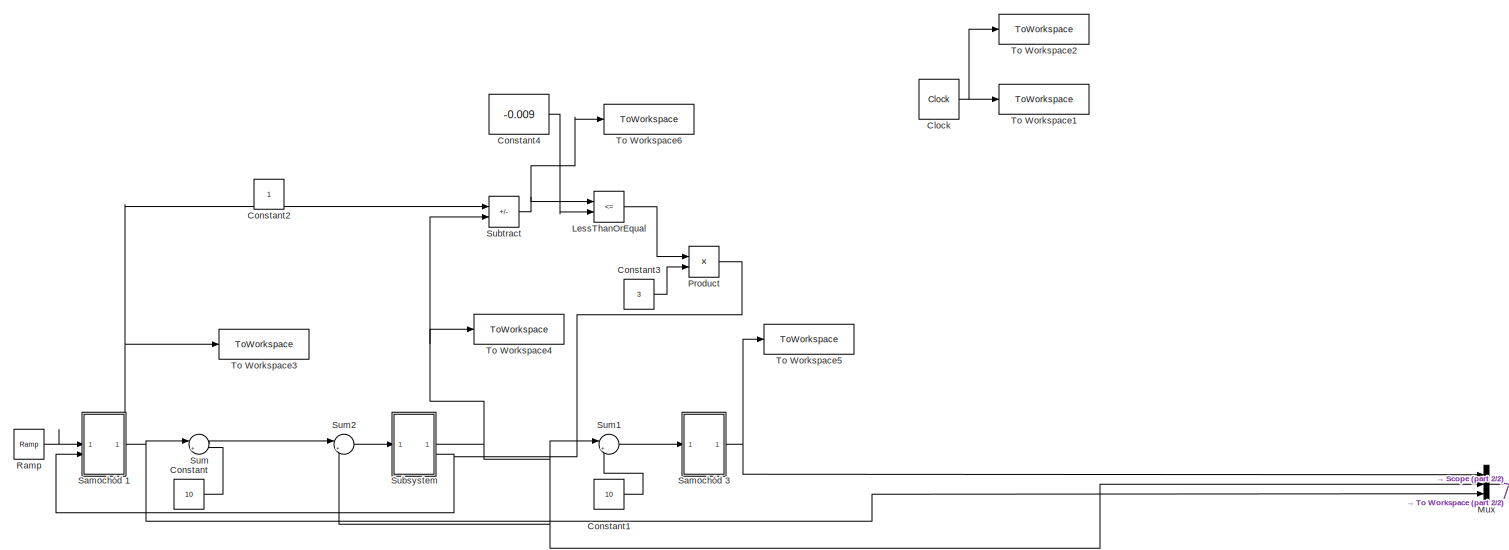
[diagram: root canvas - part 1/2, most of the canvas]
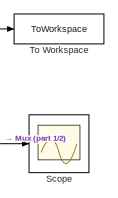
[diagram: root canvas - part 2/2, bottom right region]
MODEL slx_7ba6848b26ef
KIND model
CONFIG AbsTol = auto
CONFIG EnableMultiTasking = off
CONFIG FixedStep = auto
CONFIG MaxStep = auto
CONFIG MinStep = auto
CONFIG RelTol = 1e-12
CONFIG SampleTimeConstraint = Unconstrained
CONFIG SolverName = VariableStepAuto
CONFIG StartTime = 0
CONFIG StopTime = 200
BLOCK [Clock] Clock
BLOCK [Constant] Constant
  Value = 10
BLOCK [Constant] Constant1
  Value = 10
BLOCK [Constant] Constant2
  IOType = siggen
BLOCK [Constant] Constant3
  Value = 3
BLOCK [Constant] Constant4
  Value = -0.009
BLOCK [RelationalOperator] LessThanOrEqual
  InputSameDT = off
  Operator = <=
  OutDataTypeStr = boolean
  RndMeth = Simplest
BLOCK [Mux] Mux
  DisplayOption = bar
  Inputs = 3
BLOCK [Product] Product
BLOCK [Reference] Ramp  REF=simulink/Sources/Ramp
  SourceBlock = simulink/Sources/Ramp
  SourceType = Ramp
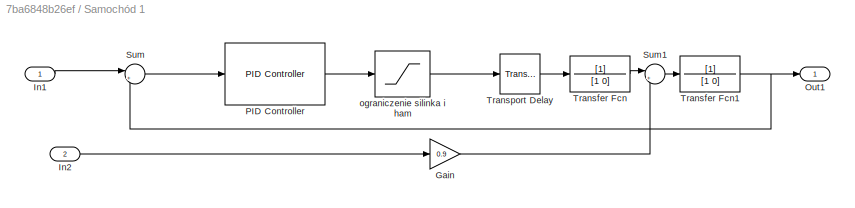
BLOCK [SubSystem] Samochód 1
BLOCK [Gain] Samochód 1/Gain
  Gain = 0.9
BLOCK [Inport] Samochód 1/In1
BLOCK [Inport] Samochód 1/In2
  Port = 2
BLOCK [Outport] Samochód 1/Out1
BLOCK [Reference] Samochód 1/PID Controller  REF=slpidlib/PID Controller
  LibrarySourceBlock = simulink/Continuous/PID Controller
  SourceBlock = slpidlib/PID Controller
  SourceType = PID 1dof
BLOCK [Sum] Samochód 1/Sum
  Inputs = |+-
BLOCK [Sum] Samochód 1/Sum1
  Inputs = |+-
BLOCK [TransferFcn] Samochód 1/Transfer Fcn
  Denominator = [1 0]
BLOCK [TransferFcn] Samochód 1/Transfer Fcn1
  Denominator = [1 0]
BLOCK [TransportDelay] Samochód 1/Transport Delay
  DelayTime = 0.08
BLOCK [Saturate] Samochód 1/ograniczenie silinka i ham
  LowerLimit = -11
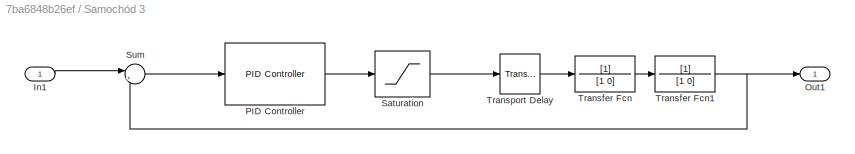
BLOCK [SubSystem] Samochód 3
BLOCK [Inport] Samochód 3/In1
BLOCK [Outport] Samochód 3/Out1
BLOCK [Reference] Samochód 3/PID Controller  REF=slpidlib/PID Controller
  LibrarySourceBlock = simulink/Continuous/PID Controller
  SourceBlock = slpidlib/PID Controller
  SourceType = PID 1dof
BLOCK [Saturate] Samochód 3/Saturation
  LowerLimit = -11
  UpperLimit = 3
BLOCK [Sum] Samochód 3/Sum
  Inputs = |+-
BLOCK [TransferFcn] Samochód 3/Transfer Fcn
  Denominator = [1 0]
BLOCK [TransferFcn] Samochód 3/Transfer Fcn1
  Denominator = [1 0]
BLOCK [TransportDelay] Samochód 3/Transport Delay
  DelayTime = 0.08
BLOCK [Scope] Scope
  Floating = off
  NumInputPorts = 1
  ScopeSpecificationString = Simulink.scopes.TimeScopeBlockCfg('CurrentConfiguration', extmgr.ConfigurationSet(extmgr.Configuration('Core','General UI',true),extmgr.Configuration('Core','Source UI',true),extmgr.Configuration('Sources','WiredSimulink',true),extmgr.Configuration('Visuals','Time Domain',true,'SerializedDisplays',{struct('MinYLimReal','-37.50672','MaxYLimReal','337.56047','YLabelReal','','MinYLimMag','0.00000','M...<+1440ch>
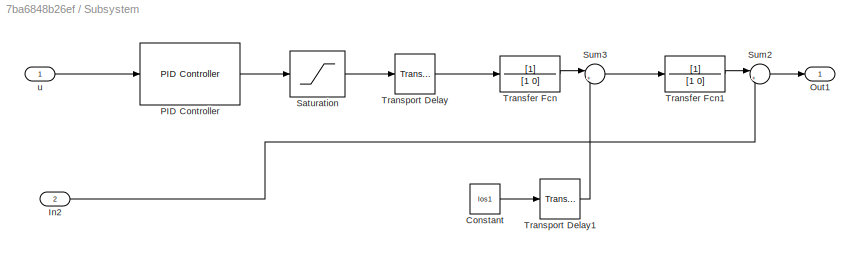
BLOCK [SubSystem] Subsystem
  PortSchema = {"entries":[{"content":{"sides":[{"content":{"connectorIds":["In1"]},"type":"ConnectorPlacement.EquallySpacedRectSide","uuid":"aee9fe24-d6fd-46d2-942b-a24b749ac3cf"},{"content":{"connectorIds":["Out1","In2"],"side":"RIGHT"},"type":"ConnectorPlacement.EquallySpacedRectSide","uuid":"829ba549-931b-492f-84d2-60b8967c824d"},{"content":{"side":"TOP"},"type":"ConnectorPlacement.EquallySpacedRectSide","uu...<+228ch>
BLOCK [Constant] Subsystem/Constant
  Value = los1
BLOCK [Inport] Subsystem/In2
  Port = 2
BLOCK [Outport] Subsystem/Out1
BLOCK [Reference] Subsystem/PID Controller  REF=slpidlib/PID Controller
  LibrarySourceBlock = simulink/Continuous/PID Controller
  SourceBlock = slpidlib/PID Controller
  SourceType = PID 1dof
BLOCK [Saturate] Subsystem/Saturation
  LowerLimit = -11
  UpperLimit = 3
BLOCK [Sum] Subsystem/Sum2
  Inputs = |++
BLOCK [Sum] Subsystem/Sum3
  Inputs = |++
BLOCK [TransferFcn] Subsystem/Transfer Fcn
  Denominator = [1 0]
BLOCK [TransferFcn] Subsystem/Transfer Fcn1
  Denominator = [1 0]
BLOCK [TransportDelay] Subsystem/Transport Delay
  DelayTime = 0.08
BLOCK [TransportDelay] Subsystem/Transport Delay1
  BufferSize = 102400
  DelayTime = 50
BLOCK [Inport] Subsystem/u
BLOCK [Sum] Subtract
  IconShape = rectangular
  Inputs = +-
BLOCK [Sum] Sum
  Inputs = |+-
BLOCK [Sum] Sum1
  Inputs = |+-
BLOCK [Sum] Sum2
  Inputs = |+-
BLOCK [ToWorkspace] To Workspace
  FixptAsFi = on
  MaxDataPoints = inf
  SampleTime = -1
  VariableName = auta
BLOCK [ToWorkspace] To Workspace1
  FixptAsFi = on
  MaxDataPoints = inf
  SampleTime = -1
  VariableName = t
BLOCK [ToWorkspace] To Workspace2
  FixptAsFi = on
  MaxDataPoints = inf
  SampleTime = -1
  SaveFormat = Timeseries
  VariableName = t1
BLOCK [ToWorkspace] To Workspace3
  FixptAsFi = on
  MaxDataPoints = inf
  SampleTime = -1
  VariableName = auto1
BLOCK [ToWorkspace] To Workspace4
  FixptAsFi = on
  MaxDataPoints = inf
  SampleTime = -1
  VariableName = auto2
BLOCK [ToWorkspace] To Workspace5
  FixptAsFi = on
  MaxDataPoints = inf
  SampleTime = -1
  VariableName = auto3
BLOCK [ToWorkspace] To Workspace6
  FixptAsFi = on
  MaxDataPoints = inf
  SampleTime = -1
  VariableName = dystans
NET Clock:1 -> To Workspace1:1, To Workspace2:1
LINE Constant1:1 -> Sum1:2
LINE Constant3:1 -> Product:2
LINE Constant4:1 -> LessThanOrEqual:2
LINE Constant:1 -> Sum:2
LINE LessThanOrEqual:1 -> Product:1
NET Mux:1 -> Scope:1, To Workspace:1
NET Product:1 -> Samochód 1:2, Subsystem:2
LINE Ramp:1 -> Samochód 1:1
LINE Samochód 1/Gain:1 -> Samochód 1/Sum1:2
LINE Samochód 1/In1:1 -> Samochód 1/Sum:1
LINE Samochód 1/In2:1 -> Samochód 1/Gain:1
LINE Samochód 1/PID Controller:1 -> Samochód 1/ograniczenie silinka i ham:1
LINE Samochód 1/Sum1:1 -> Samochód 1/Transfer Fcn1:1
LINE Samochód 1/Sum:1 -> Samochód 1/PID Controller:1
NET Samochód 1/Transfer Fcn1:1 -> Samochód 1/Out1:1, Samochód 1/Sum:2
LINE Samochód 1/Transfer Fcn:1 -> Samochód 1/Sum1:1
LINE Samochód 1/Transport Delay:1 -> Samochód 1/Transfer Fcn:1
LINE Samochód 1/ograniczenie silinka i ham:1 -> Samochód 1/Transport Delay:1
NET Samochód 1:1 -> Mux:3, Subtract:1, Sum:1, To Workspace3:1
LINE Samochód 3/In1:1 -> Samochód 3/Sum:1
LINE Samochód 3/PID Controller:1 -> Samochód 3/Saturation:1
LINE Samochód 3/Saturation:1 -> Samochód 3/Transport Delay:1
LINE Samochód 3/Sum:1 -> Samochód 3/PID Controller:1
NET Samochód 3/Transfer Fcn1:1 -> Samochód 3/Out1:1, Samochód 3/Sum:2
LINE Samochód 3/Transfer Fcn:1 -> Samochód 3/Transfer Fcn1:1
LINE Samochód 3/Transport Delay:1 -> Samochód 3/Transfer Fcn:1
NET Samochód 3:1 -> Mux:1, To Workspace5:1
LINE Subsystem/Constant:1 -> Subsystem/Transport Delay1:1
LINE Subsystem/In2:1 -> Subsystem/Sum2:2
LINE Subsystem/PID Controller:1 -> Subsystem/Saturation:1
LINE Subsystem/Saturation:1 -> Subsystem/Transport Delay:1
LINE Subsystem/Sum2:1 -> Subsystem/Out1:1
LINE Subsystem/Sum3:1 -> Subsystem/Transfer Fcn1:1
LINE Subsystem/Transfer Fcn1:1 -> Subsystem/Sum2:1
LINE Subsystem/Transfer Fcn:1 -> Subsystem/Sum3:1
LINE Subsystem/Transport Delay1:1 -> Subsystem/Sum3:2
LINE Subsystem/Transport Delay:1 -> Subsystem/Transfer Fcn:1
LINE Subsystem/u:1 -> Subsystem/PID Controller:1
NET Subsystem:1 -> Mux:2, Subtract:2, Sum1:1, Sum2:2, To Workspace4:1
NET Subtract:1 -> LessThanOrEqual:1, To Workspace6:1
LINE Sum1:1 -> Samochód 3:1
LINE Sum2:1 -> Subsystem:1
LINE Sum:1 -> Sum2:1
note: NET lines group one-source signal fan-out (src -> all destinations, sorted); 1:1 wires keep LINE
